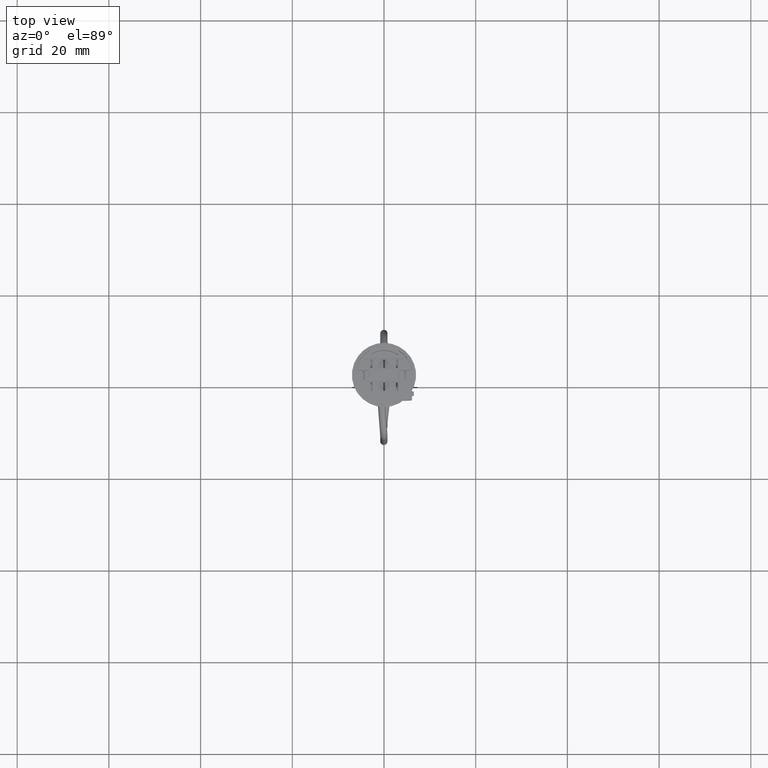
[diagram: clean part render]
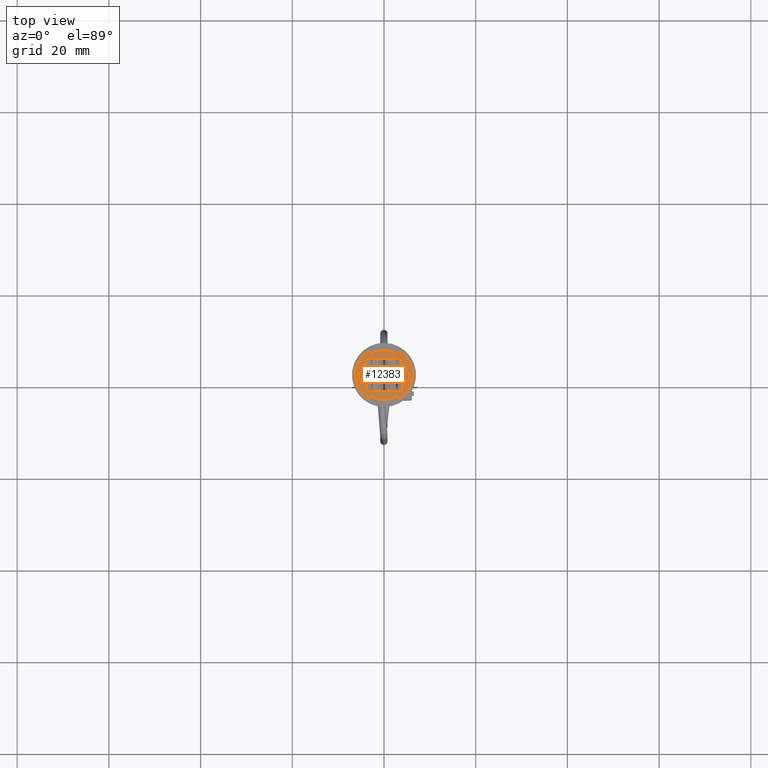
[diagram: same view with one face highlighted and labeled with its STEP entity id]
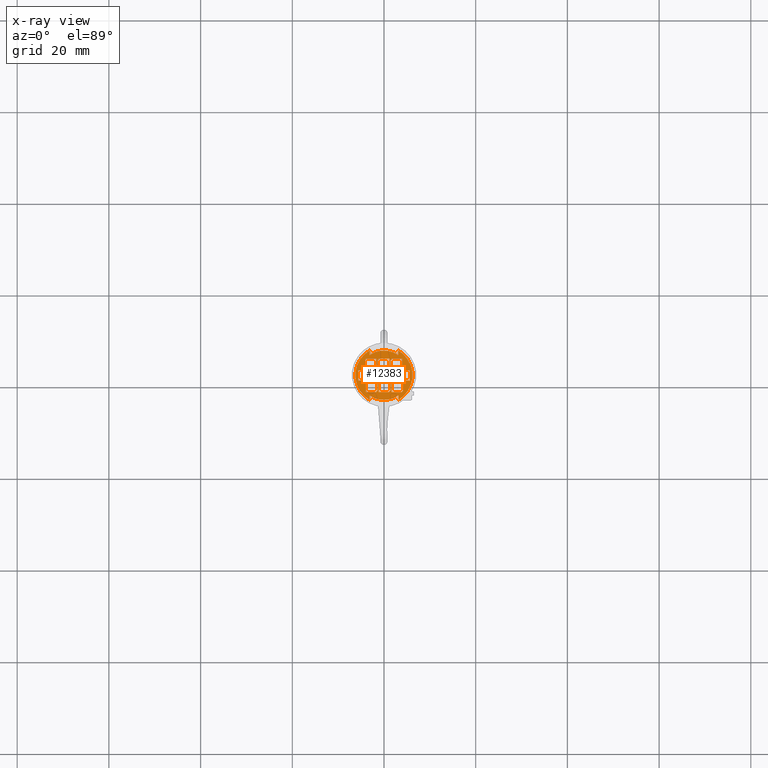
[diagram: x-ray of the same camera — body ghosted, the highlighted face saturated]
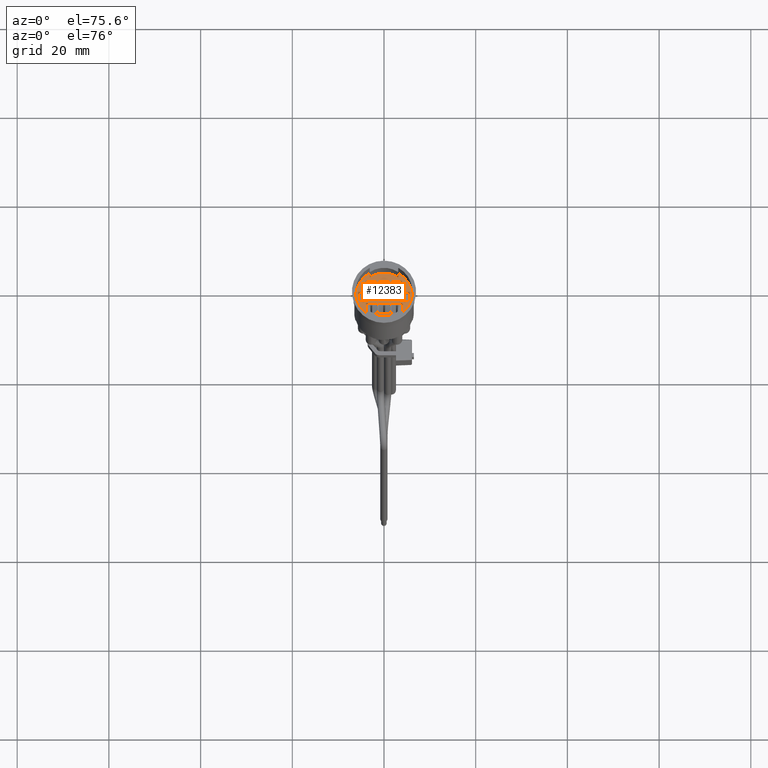
[diagram: same view with one face highlighted and labeled with its STEP entity id]
A machine part, top view. The second image highlights one B-rep face of the part: STEP entity #12383.
The next image is the same camera in x-ray: the body ghosted, the highlighted face saturated — about 0% of this face is hidden behind the body in this view.
A second angle (auxiliary view) of the same face is appended — the face is thin or edge-on in the first view.
In plain terms, the highlighted planar face has unit normal (-0, -0, 1).
Its self-contained STEP definition (entity closure, byte-faithful):
#400=PLANE('',#13470);
#833=FACE_BOUND('',#1990,.T.);
#834=FACE_BOUND('',#1991,.T.);
#835=FACE_BOUND('',#1992,.T.);
#836=FACE_BOUND('',#1993,.T.);
#837=FACE_BOUND('',#1994,.T.);
#838=FACE_BOUND('',#1995,.T.);
#839=FACE_BOUND('',#1996,.T.);
#840=FACE_BOUND('',#1997,.T.);
#1285=FACE_OUTER_BOUND('',#1989,.T.);
#1989=EDGE_LOOP('',(#10390,#10391,#10392,#10393,#10394,#10395,#10396,#10397));
#1990=EDGE_LOOP('',(#10398,#10399,#10400,#10401,#10402,#10403,#10404,#10405));
#1991=EDGE_LOOP('',(#10406,#10407,#10408,#10409,#10410,#10411,#10412,#10413));
#1992=EDGE_LOOP('',(#10414,#10415,#10416,#10417,#10418,#10419,#10420,#10421));
#1993=EDGE_LOOP('',(#10422,#10423,#10424,#10425,#10426,#10427,#10428,#10429));
#1994=EDGE_LOOP('',(#10430,#10431,#10432,#10433,#10434,#10435,#10436,#10437));
#1995=EDGE_LOOP('',(#10438,#10439,#10440,#10441,#10442,#10443,#10444,#10445));
#1996=EDGE_LOOP('',(#10446,#10447,#10448,#10449,#10450,#10451,#10452,#10453));
#1997=EDGE_LOOP('',(#10454,#10455,#10456,#10457,#10458,#10459,#10460,#10461));
#2685=CIRCLE('',#13471,5.4);
#2686=CIRCLE('',#13472,6.25);
#2687=CIRCLE('',#13473,5.4);
#2688=CIRCLE('',#13474,6.25);
#2822=LINE('',#17416,#3972);
#2825=LINE('',#17421,#3975);
#2827=LINE('',#17425,#3977);
#2829=LINE('',#17429,#3979);
#2888=LINE('',#17612,#4038);
#2891=LINE('',#17617,#4041);
#2893=LINE('',#17621,#4043);
#2895=LINE('',#17625,#4045);
#2954=LINE('',#17805,#4104);
#2957=LINE('',#17810,#4107);
#2959=LINE('',#17814,#4109);
#2961=LINE('',#17818,#4111);
#3281=LINE('',#21295,#4431);
#3295=LINE('',#21322,#4445);
#3322=LINE('',#21375,#4472);
#3345=LINE('',#21420,#4495);
#3479=LINE('',#22137,#4629);
#3480=LINE('',#22141,#4630);
#3481=LINE('',#22145,#4631);
#3482=LINE('',#22149,#4632);
#3483=LINE('',#22152,#4633);
#3484=LINE('',#22154,#4634);
#3485=LINE('',#22156,#4635);
#3486=LINE('',#22157,#4636);
#3487=LINE('',#22159,#4637);
#3488=LINE('',#22161,#4638);
#3489=LINE('',#22163,#4639);
#3490=LINE('',#22164,#4640);
#3491=LINE('',#22166,#4641);
#3492=LINE('',#22168,#4642);
#3493=LINE('',#22170,#4643);
#3494=LINE('',#22172,#4644);
#3495=LINE('',#22174,#4645);
#3496=LINE('',#22176,#4646);
#3497=LINE('',#22177,#4647);
#3498=LINE('',#22180,#4648);
#3499=LINE('',#22182,#4649);
#3500=LINE('',#22184,#4650);
#3501=LINE('',#22185,#4651);
#3502=LINE('',#22187,#4652);
#3503=LINE('',#22189,#4653);
#3504=LINE('',#22190,#4654);
#3505=LINE('',#22193,#4655);
#3506=LINE('',#22195,#4656);
#3507=LINE('',#22197,#4657);
#3508=LINE('',#22199,#4658);
#3509=LINE('',#22200,#4659);
#3510=LINE('',#22202,#4660);
#3511=LINE('',#22203,#4661);
#3512=LINE('',#22205,#4662);
#3513=LINE('',#22207,#4663);
#3514=LINE('',#22209,#4664);
#3515=LINE('',#22210,#4665);
#3516=LINE('',#22213,#4666);
#3517=LINE('',#22215,#4667);
#3518=LINE('',#22217,#4668);
#3519=LINE('',#22219,#4669);
#3520=LINE('',#22221,#4670);
#3521=LINE('',#22223,#4671);
#3522=LINE('',#22225,#4672);
#3523=LINE('',#22226,#4673);
#3524=LINE('',#22228,#4674);
#3525=LINE('',#22230,#4675);
#3526=LINE('',#22232,#4676);
#3527=LINE('',#22234,#4677);
#3528=LINE('',#22236,#4678);
#3529=LINE('',#22238,#4679);
#3530=LINE('',#22239,#4680);
#3972=VECTOR('',#13924,10.);
#3975=VECTOR('',#13929,10.);
#3977=VECTOR('',#13933,10.);
#3979=VECTOR('',#13937,10.);
#4038=VECTOR('',#14056,10.);
#4041=VECTOR('',#14061,10.);
#4043=VECTOR('',#14065,10.);
#4045=VECTOR('',#14069,10.);
#4104=VECTOR('',#14188,10.);
#4107=VECTOR('',#14193,10.);
#4109=VECTOR('',#14197,10.);
#4111=VECTOR('',#14201,10.);
#4431=VECTOR('',#15821,10.);
#4445=VECTOR('',#15845,10.);
#4472=VECTOR('',#15890,10.);
#4495=VECTOR('',#15927,10.);
#4629=VECTOR('',#16153,10.);
#4630=VECTOR('',#16156,10.);
#4631=VECTOR('',#16159,10.);
#4632=VECTOR('',#16162,10.);
#4633=VECTOR('',#16165,10.);
#4634=VECTOR('',#16166,10.);
#4635=VECTOR('',#16167,10.);
#4636=VECTOR('',#16168,10.);
#4637=VECTOR('',#16169,10.);
#4638=VECTOR('',#16170,10.);
#4639=VECTOR('',#16171,10.);
#4640=VECTOR('',#16172,10.);
#4641=VECTOR('',#16173,10.);
#4642=VECTOR('',#16174,10.);
#4643=VECTOR('',#16175,10.);
#4644=VECTOR('',#16176,10.);
#4645=VECTOR('',#16177,10.);
#4646=VECTOR('',#16178,10.);
#4647=VECTOR('',#16179,10.);
#4648=VECTOR('',#16180,10.);
#4649=VECTOR('',#16181,10.);
#4650=VECTOR('',#16182,10.);
#4651=VECTOR('',#16183,10.);
#4652=VECTOR('',#16184,10.);
#4653=VECTOR('',#16185,10.);
#4654=VECTOR('',#16186,10.);
#4655=VECTOR('',#16187,10.);
#4656=VECTOR('',#16188,10.);
#4657=VECTOR('',#16189,10.);
#4658=VECTOR('',#16190,10.);
#4659=VECTOR('',#16191,10.);
#4660=VECTOR('',#16192,10.);
#4661=VECTOR('',#16193,10.);
#4662=VECTOR('',#16194,10.);
#4663=VECTOR('',#16195,10.);
#4664=VECTOR('',#16196,10.);
#4665=VECTOR('',#16197,10.);
#4666=VECTOR('',#16198,10.);
#4667=VECTOR('',#16199,10.);
#4668=VECTOR('',#16200,10.);
#4669=VECTOR('',#16201,10.);
#4670=VECTOR('',#16202,10.);
#4671=VECTOR('',#16203,10.);
#4672=VECTOR('',#16204,10.);
#4673=VECTOR('',#16205,10.);
#4674=VECTOR('',#16206,10.);
#4675=VECTOR('',#16207,10.);
#4676=VECTOR('',#16208,10.);
#4677=VECTOR('',#16209,10.);
#4678=VECTOR('',#16210,10.);
#4679=VECTOR('',#16211,10.);
#4680=VECTOR('',#16212,10.);
#5124=VERTEX_POINT('',#17413);
#5125=VERTEX_POINT('',#17415);
#5126=VERTEX_POINT('',#17419);
#5127=VERTEX_POINT('',#17423);
#5128=VERTEX_POINT('',#17427);
#5185=VERTEX_POINT('',#17609);
#5186=VERTEX_POINT('',#17611);
#5187=VERTEX_POINT('',#17615);
#5188=VERTEX_POINT('',#17619);
#5189=VERTEX_POINT('',#17623);
#5246=VERTEX_POINT('',#17802);
#5247=VERTEX_POINT('',#17804);
#5248=VERTEX_POINT('',#17808);
#5249=VERTEX_POINT('',#17812);
#5250=VERTEX_POINT('',#17816);
#5763=VERTEX_POINT('',#21292);
#5764=VERTEX_POINT('',#21294);
#5771=VERTEX_POINT('',#21319);
#5772=VERTEX_POINT('',#21321);
#5788=VERTEX_POINT('',#21372);
#5789=VERTEX_POINT('',#21374);
#5803=VERTEX_POINT('',#21417);
#5804=VERTEX_POINT('',#21419);
#5919=VERTEX_POINT('',#22135);
#5920=VERTEX_POINT('',#22136);
#5921=VERTEX_POINT('',#22138);
#5922=VERTEX_POINT('',#22140);
#5923=VERTEX_POINT('',#22142);
#5924=VERTEX_POINT('',#22144);
#5925=VERTEX_POINT('',#22146);
#5926=VERTEX_POINT('',#22148);
#5927=VERTEX_POINT('',#22151);
#5928=VERTEX_POINT('',#22153);
#5929=VERTEX_POINT('',#22155);
#5930=VERTEX_POINT('',#22158);
#5931=VERTEX_POINT('',#22160);
#5932=VERTEX_POINT('',#22162);
#5933=VERTEX_POINT('',#22165);
#5934=VERTEX_POINT('',#22167);
#5935=VERTEX_POINT('',#22169);
#5936=VERTEX_POINT('',#22171);
#5937=VERTEX_POINT('',#22173);
#5938=VERTEX_POINT('',#22175);
#5939=VERTEX_POINT('',#22178);
#5940=VERTEX_POINT('',#22179);
#5941=VERTEX_POINT('',#22181);
#5942=VERTEX_POINT('',#22183);
#5943=VERTEX_POINT('',#22186);
#5944=VERTEX_POINT('',#22188);
#5945=VERTEX_POINT('',#22191);
#5946=VERTEX_POINT('',#22192);
#5947=VERTEX_POINT('',#22194);
#5948=VERTEX_POINT('',#22196);
#5949=VERTEX_POINT('',#22198);
#5950=VERTEX_POINT('',#22201);
#5951=VERTEX_POINT('',#22204);
#5952=VERTEX_POINT('',#22206);
#5953=VERTEX_POINT('',#22208);
#5954=VERTEX_POINT('',#22211);
#5955=VERTEX_POINT('',#22212);
#5956=VERTEX_POINT('',#22214);
#5957=VERTEX_POINT('',#22216);
#5958=VERTEX_POINT('',#22218);
#5959=VERTEX_POINT('',#22220);
#5960=VERTEX_POINT('',#22222);
#5961=VERTEX_POINT('',#22224);
#5962=VERTEX_POINT('',#22227);
#5963=VERTEX_POINT('',#22229);
#5964=VERTEX_POINT('',#22231);
#5965=VERTEX_POINT('',#22233);
#5966=VERTEX_POINT('',#22235);
#5967=VERTEX_POINT('',#22237);
#6345=EDGE_CURVE('',#5125,#5124,#2822,.T.);
#6348=EDGE_CURVE('',#5124,#5126,#2825,.T.);
#6350=EDGE_CURVE('',#5126,#5127,#2827,.T.);
#6352=EDGE_CURVE('',#5127,#5128,#2829,.T.);
#6427=EDGE_CURVE('',#5186,#5185,#2888,.T.);
#6430=EDGE_CURVE('',#5185,#5187,#2891,.T.);
#6432=EDGE_CURVE('',#5187,#5188,#2893,.T.);
#6434=EDGE_CURVE('',#5188,#5189,#2895,.T.);
#6509=EDGE_CURVE('',#5247,#5246,#2954,.T.);
#6512=EDGE_CURVE('',#5246,#5248,#2957,.T.);
#6514=EDGE_CURVE('',#5248,#5249,#2959,.T.);
#6516=EDGE_CURVE('',#5249,#5250,#2961,.T.);
#7290=EDGE_CURVE('',#5764,#5763,#3281,.T.);
#7304=EDGE_CURVE('',#5772,#5771,#3295,.T.);
#7331=EDGE_CURVE('',#5789,#5788,#3322,.T.);
#7354=EDGE_CURVE('',#5804,#5803,#3345,.T.);
#7537=EDGE_CURVE('',#5919,#5920,#3479,.T.);
#7538=EDGE_CURVE('',#5921,#5919,#2685,.T.);
#7539=EDGE_CURVE('',#5922,#5921,#3480,.T.);
#7540=EDGE_CURVE('',#5923,#5922,#2686,.T.);
#7541=EDGE_CURVE('',#5924,#5923,#3481,.T.);
#7542=EDGE_CURVE('',#5925,#5924,#2687,.T.);
#7543=EDGE_CURVE('',#5926,#5925,#3482,.T.);
#7544=EDGE_CURVE('',#5920,#5926,#2688,.T.);
#7545=EDGE_CURVE('',#5927,#5186,#3483,.T.);
#7546=EDGE_CURVE('',#5189,#5928,#3484,.T.);
#7547=EDGE_CURVE('',#5928,#5929,#3485,.T.);
#7548=EDGE_CURVE('',#5929,#5927,#3486,.T.);
#7549=EDGE_CURVE('',#5128,#5930,#3487,.T.);
#7550=EDGE_CURVE('',#5930,#5931,#3488,.T.);
#7551=EDGE_CURVE('',#5931,#5932,#3489,.T.);
#7552=EDGE_CURVE('',#5932,#5125,#3490,.T.);
#7553=EDGE_CURVE('',#5933,#5772,#3491,.T.);
#7554=EDGE_CURVE('',#5771,#5934,#3492,.T.);
#7555=EDGE_CURVE('',#5934,#5935,#3493,.T.);
#7556=EDGE_CURVE('',#5935,#5936,#3494,.T.);
#7557=EDGE_CURVE('',#5936,#5937,#3495,.T.);
#7558=EDGE_CURVE('',#5937,#5938,#3496,.T.);
#7559=EDGE_CURVE('',#5938,#5933,#3497,.T.);
#7560=EDGE_CURVE('',#5939,#5940,#3498,.T.);
#7561=EDGE_CURVE('',#5940,#5941,#3499,.T.);
#7562=EDGE_CURVE('',#5941,#5942,#3500,.T.);
#7563=EDGE_CURVE('',#5942,#5789,#3501,.T.);
#7564=EDGE_CURVE('',#5788,#5943,#3502,.T.);
#7565=EDGE_CURVE('',#5943,#5944,#3503,.T.);
#7566=EDGE_CURVE('',#5944,#5939,#3504,.T.);
#7567=EDGE_CURVE('',#5945,#5946,#3505,.T.);
#7568=EDGE_CURVE('',#5946,#5947,#3506,.T.);
#7569=EDGE_CURVE('',#5947,#5948,#3507,.T.);
#7570=EDGE_CURVE('',#5948,#5949,#3508,.T.);
#7571=EDGE_CURVE('',#5949,#5804,#3509,.T.);
#7572=EDGE_CURVE('',#5803,#5950,#3510,.T.);
#7573=EDGE_CURVE('',#5950,#5945,#3511,.T.);
#7574=EDGE_CURVE('',#5250,#5951,#3512,.T.);
#7575=EDGE_CURVE('',#5951,#5952,#3513,.T.);
#7576=EDGE_CURVE('',#5952,#5953,#3514,.T.);
#7577=EDGE_CURVE('',#5953,#5247,#3515,.T.);
#7578=EDGE_CURVE('',#5954,#5955,#3516,.T.);
#7579=EDGE_CURVE('',#5955,#5956,#3517,.T.);
#7580=EDGE_CURVE('',#5956,#5957,#3518,.T.);
#7581=EDGE_CURVE('',#5957,#5958,#3519,.T.);
#7582=EDGE_CURVE('',#5958,#5959,#3520,.T.);
#7583=EDGE_CURVE('',#5959,#5960,#3521,.T.);
#7584=EDGE_CURVE('',#5960,#5961,#3522,.T.);
#7585=EDGE_CURVE('',#5961,#5954,#3523,.T.);
#7586=EDGE_CURVE('',#5763,#5962,#3524,.T.);
#7587=EDGE_CURVE('',#5962,#5963,#3525,.T.);
#7588=EDGE_CURVE('',#5963,#5964,#3526,.T.);
#7589=EDGE_CURVE('',#5964,#5965,#3527,.T.);
#7590=EDGE_CURVE('',#5965,#5966,#3528,.T.);
#7591=EDGE_CURVE('',#5966,#5967,#3529,.T.);
#7592=EDGE_CURVE('',#5967,#5764,#3530,.T.);
#10390=ORIENTED_EDGE('',*,*,#7537,.F.);
#10391=ORIENTED_EDGE('',*,*,#7538,.F.);
#10392=ORIENTED_EDGE('',*,*,#7539,.F.);
#10393=ORIENTED_EDGE('',*,*,#7540,.F.);
#10394=ORIENTED_EDGE('',*,*,#7541,.F.);
#10395=ORIENTED_EDGE('',*,*,#7542,.F.);
#10396=ORIENTED_EDGE('',*,*,#7543,.F.);
#10397=ORIENTED_EDGE('',*,*,#7544,.F.);
#10398=ORIENTED_EDGE('',*,*,#7545,.T.);
#10399=ORIENTED_EDGE('',*,*,#6427,.T.);
#10400=ORIENTED_EDGE('',*,*,#6430,.T.);
#10401=ORIENTED_EDGE('',*,*,#6432,.T.);
#10402=ORIENTED_EDGE('',*,*,#6434,.T.);
#10403=ORIENTED_EDGE('',*,*,#7546,.T.);
#10404=ORIENTED_EDGE('',*,*,#7547,.T.);
#10405=ORIENTED_EDGE('',*,*,#7548,.T.);
#10406=ORIENTED_EDGE('',*,*,#6345,.T.);
#10407=ORIENTED_EDGE('',*,*,#6348,.T.);
#10408=ORIENTED_EDGE('',*,*,#6350,.T.);
#10409=ORIENTED_EDGE('',*,*,#6352,.T.);
#10410=ORIENTED_EDGE('',*,*,#7549,.T.);
#10411=ORIENTED_EDGE('',*,*,#7550,.T.);
#10412=ORIENTED_EDGE('',*,*,#7551,.T.);
#10413=ORIENTED_EDGE('',*,*,#7552,.T.);
#10414=ORIENTED_EDGE('',*,*,#7553,.T.);
#10415=ORIENTED_EDGE('',*,*,#7304,.T.);
#10416=ORIENTED_EDGE('',*,*,#7554,.T.);
#10417=ORIENTED_EDGE('',*,*,#7555,.T.);
#10418=ORIENTED_EDGE('',*,*,#7556,.T.);
#10419=ORIENTED_EDGE('',*,*,#7557,.T.);
#10420=ORIENTED_EDGE('',*,*,#7558,.T.);
#10421=ORIENTED_EDGE('',*,*,#7559,.T.);
#10422=ORIENTED_EDGE('',*,*,#7560,.T.);
#10423=ORIENTED_EDGE('',*,*,#7561,.T.);
#10424=ORIENTED_EDGE('',*,*,#7562,.T.);
#10425=ORIENTED_EDGE('',*,*,#7563,.T.);
#10426=ORIENTED_EDGE('',*,*,#7331,.T.);
#10427=ORIENTED_EDGE('',*,*,#7564,.T.);
#10428=ORIENTED_EDGE('',*,*,#7565,.T.);
#10429=ORIENTED_EDGE('',*,*,#7566,.T.);
#10430=ORIENTED_EDGE('',*,*,#7567,.T.);
#10431=ORIENTED_EDGE('',*,*,#7568,.T.);
#10432=ORIENTED_EDGE('',*,*,#7569,.T.);
#10433=ORIENTED_EDGE('',*,*,#7570,.T.);
#10434=ORIENTED_EDGE('',*,*,#7571,.T.);
#10435=ORIENTED_EDGE('',*,*,#7354,.T.);
#10436=ORIENTED_EDGE('',*,*,#7572,.T.);
#10437=ORIENTED_EDGE('',*,*,#7573,.T.);
#10438=ORIENTED_EDGE('',*,*,#7574,.T.);
#10439=ORIENTED_EDGE('',*,*,#7575,.T.);
#10440=ORIENTED_EDGE('',*,*,#7576,.T.);
#10441=ORIENTED_EDGE('',*,*,#7577,.T.);
#10442=ORIENTED_EDGE('',*,*,#6509,.T.);
#10443=ORIENTED_EDGE('',*,*,#6512,.T.);
#10444=ORIENTED_EDGE('',*,*,#6514,.T.);
#10445=ORIENTED_EDGE('',*,*,#6516,.T.);
#10446=ORIENTED_EDGE('',*,*,#7578,.T.);
#10447=ORIENTED_EDGE('',*,*,#7579,.T.);
#10448=ORIENTED_EDGE('',*,*,#7580,.T.);
#10449=ORIENTED_EDGE('',*,*,#7581,.T.);
#10450=ORIENTED_EDGE('',*,*,#7582,.T.);
#10451=ORIENTED_EDGE('',*,*,#7583,.T.);
#10452=ORIENTED_EDGE('',*,*,#7584,.T.);
#10453=ORIENTED_EDGE('',*,*,#7585,.T.);
#10454=ORIENTED_EDGE('',*,*,#7290,.T.);
#10455=ORIENTED_EDGE('',*,*,#7586,.T.);
#10456=ORIENTED_EDGE('',*,*,#7587,.T.);
#10457=ORIENTED_EDGE('',*,*,#7588,.T.);
#10458=ORIENTED_EDGE('',*,*,#7589,.T.);
#10459=ORIENTED_EDGE('',*,*,#7590,.T.);
#10460=ORIENTED_EDGE('',*,*,#7591,.T.);
#10461=ORIENTED_EDGE('',*,*,#7592,.T.);
#12383=ADVANCED_FACE('',(#1285,#833,#834,#835,#836,#837,#838,#839,#840),
#400,.T.);
#13470=AXIS2_PLACEMENT_3D('',#22134,#16151,#16152);
#13471=AXIS2_PLACEMENT_3D('',#22139,#16154,#16155);
#13472=AXIS2_PLACEMENT_3D('',#22143,#16157,#16158);
#13473=AXIS2_PLACEMENT_3D('',#22147,#16160,#16161);
#13474=AXIS2_PLACEMENT_3D('',#22150,#16163,#16164);
#13924=DIRECTION('',(7.83572744318549E-15,-1.,1.68711463128373E-30));
#13929=DIRECTION('',(-1.,-7.83572744318549E-15,-1.33148491864264E-14));
#13933=DIRECTION('',(-7.83572744318549E-15,1.,-1.68711463128373E-30));
#13937=DIRECTION('',(-1.,3.2665028030664E-15,-1.33148491864264E-14));
#14056=DIRECTION('',(7.83572744318549E-15,-1.,1.68711463128373E-30));
#14061=DIRECTION('',(-1.,-7.83572744318549E-15,-1.33148491864264E-14));
#14065=DIRECTION('',(-7.83572744318549E-15,1.,-1.68711463128373E-30));
#14069=DIRECTION('',(-1.,3.26650280306639E-15,-1.33148491864264E-14));
#14188=DIRECTION('',(4.76754237880724E-14,1.,7.37435492177822E-28));
#14193=DIRECTION('',(1.,9.7665500947075E-15,1.33148491864264E-14));
#14197=DIRECTION('',(2.28461232005965E-15,-1.,-7.22251460496275E-29));
#14201=DIRECTION('',(1.,2.28461232005958E-15,1.33148491864264E-14));
#15821=DIRECTION('',(7.83572744318549E-15,-1.,1.68711463128373E-30));
#15845=DIRECTION('',(7.83572744318549E-15,-1.,1.68711463128373E-30));
#15890=DIRECTION('',(4.76754237880724E-14,1.,7.37435492177822E-28));
#15927=DIRECTION('',(4.76754237880724E-14,1.,7.37435492177822E-28));
#16151=DIRECTION('center_axis',(-1.33148491864264E-14,-1.02644414540674E-28,
1.));
#16152=DIRECTION('ref_axis',(-7.83572744318549E-15,1.,-1.68711463128373E-30));
#16153=DIRECTION('',(-7.83572744318549E-15,1.,-1.68711463128373E-30));
#16154=DIRECTION('center_axis',(1.33148491864264E-14,1.02644414540674E-28,
-1.));
#16155=DIRECTION('ref_axis',(-0.574074074074068,-0.818803369238306,-7.64370971813366E-15));
#16156=DIRECTION('',(7.83572744318549E-15,-1.,1.68711463128373E-30));
#16157=DIRECTION('center_axis',(1.33148491864264E-14,1.02644414540674E-28,
-1.));
#16158=DIRECTION('ref_axis',(0.501047504744671,-0.865419781371526,6.67137196091046E-15));
#16159=DIRECTION('',(7.83572744318549E-15,-1.,1.68711463128373E-30));
#16160=DIRECTION('center_axis',(1.33148491864264E-14,1.02644414540674E-28,
-1.));
#16161=DIRECTION('ref_axis',(0.574074074074068,0.818803369238306,7.64370971813367E-15));
#16162=DIRECTION('',(-1.01049741746063E-14,1.,-3.19017926269429E-29));
#16163=DIRECTION('center_axis',(1.33148491864264E-14,1.02644414540674E-28,
-1.));
#16164=DIRECTION('ref_axis',(-0.501047504744671,0.865419781371525,-6.67137196091047E-15));
#16165=DIRECTION('',(1.,7.83572744318549E-15,1.33148491864264E-14));
#16166=DIRECTION('',(-7.98180942010985E-15,1.,-3.63217412288664E-30));
#16167=DIRECTION('',(1.,7.83572744318549E-15,1.33148491864264E-14));
#16168=DIRECTION('',(-7.83572744318549E-15,1.,-1.68711463128373E-30));
#16169=DIRECTION('',(-7.83572744318549E-15,1.,-1.68711463128373E-30));
#16170=DIRECTION('',(1.,7.83572744318549E-15,1.33148491864264E-14));
#16171=DIRECTION('',(-7.83572744318549E-15,1.,-1.68711463128373E-30));
#16172=DIRECTION('',(1.,7.83572744318549E-15,1.33148491864264E-14));
#16173=DIRECTION('',(1.,7.83572744318549E-15,1.33148491864264E-14));
#16174=DIRECTION('',(-1.,-7.83572744318549E-15,-1.33148491864264E-14));
#16175=DIRECTION('',(-7.83572744318549E-15,1.,-1.68711463128373E-30));
#16176=DIRECTION('',(-1.,3.2665028030664E-15,-1.33148491864264E-14));
#16177=DIRECTION('',(-8.12789139703422E-15,1.,-5.57723361448955E-30));
#16178=DIRECTION('',(1.,7.83572744318549E-15,1.33148491864264E-14));
#16179=DIRECTION('',(-7.83572744318549E-15,1.,-1.68711463128373E-30));
#16180=DIRECTION('',(1.0465203027824E-14,-1.,3.66981854801361E-29));
#16181=DIRECTION('',(-1.,-1.06112850047465E-14,-1.33148491864264E-14));
#16182=DIRECTION('',(7.83572744318549E-15,-1.,1.68711463128373E-30));
#16183=DIRECTION('',(-1.,-9.28384443182701E-15,-1.33148491864264E-14));
#16184=DIRECTION('',(1.,9.7665500947075E-15,1.33148491864264E-14));
#16185=DIRECTION('',(2.28461232005967E-15,-1.,-7.22251460496273E-29));
#16186=DIRECTION('',(1.,5.06016988162253E-15,1.33148491864264E-14));
#16187=DIRECTION('',(1.,4.36628049123179E-15,1.33148491864264E-14));
#16188=DIRECTION('',(1.01730390739753E-14,-1.,3.28080664969303E-29));
#16189=DIRECTION('',(-1.,-1.06112850047465E-14,-1.33148491864264E-14));
#16190=DIRECTION('',(7.83572744318549E-15,-1.,1.68711463128373E-30));
#16191=DIRECTION('',(-1.,-9.28384443182701E-15,-1.33148491864264E-14));
#16192=DIRECTION('',(1.,9.7665500947075E-15,1.33148491864264E-14));
#16193=DIRECTION('',(2.28461232005966E-15,-1.,-7.22251460496274E-29));
#16194=DIRECTION('',(1.07573669816727E-14,-1.,4.05883044633419E-29));
#16195=DIRECTION('',(-1.,-7.83572744318549E-15,-1.33148491864264E-14));
#16196=DIRECTION('',(7.83572744318549E-15,-1.,1.68711463128373E-30));
#16197=DIRECTION('',(-1.,-9.28384443182701E-15,-1.33148491864264E-14));
#16198=DIRECTION('',(1.,6.44794866240401E-15,1.33148491864264E-14));
#16199=DIRECTION('',(1.07573669816727E-14,-1.,4.05883044633419E-29));
#16200=DIRECTION('',(-1.,-7.83572744318549E-15,-1.33148491864264E-14));
#16201=DIRECTION('',(7.83572744318549E-15,-1.,1.68711463128373E-30));
#16202=DIRECTION('',(-1.,-9.28384443182701E-15,-1.33148491864264E-14));
#16203=DIRECTION('',(4.76754237880724E-14,1.,7.37435492177822E-28));
#16204=DIRECTION('',(1.,9.7665500947075E-15,1.33148491864264E-14));
#16205=DIRECTION('',(4.36628049123186E-15,-1.,-4.45080482942856E-29));
#16206=DIRECTION('',(-1.,-7.83572744318549E-15,-1.33148491864264E-14));
#16207=DIRECTION('',(-7.83572744318549E-15,1.,-1.68711463128373E-30));
#16208=DIRECTION('',(-1.,3.96039219345711E-15,-1.33148491864264E-14));
#16209=DIRECTION('',(-8.12789139703422E-15,1.,-5.57723361448955E-30));
#16210=DIRECTION('',(1.,7.83572744318549E-15,1.33148491864264E-14));
#16211=DIRECTION('',(-7.83572744318549E-15,1.,-1.68711463128373E-30));
#16212=DIRECTION('',(1.,7.83572744318549E-15,1.33148491864264E-14));
#17413=CARTESIAN_POINT('',(-1.65000000000018,1.34999999999999,20.3999999999999));
#17415=CARTESIAN_POINT('',(-1.65000000000019,3.64999999999999,20.3999999999999));
#17416=CARTESIAN_POINT('',(-1.65000000000018,1.82942033688834,20.3999999999999));
#17419=CARTESIAN_POINT('',(-3.95000000000018,1.34999999999997,20.3999999999999));
#17421=CARTESIAN_POINT('',(-0.825000000000176,1.34999999999999,20.3999999999999));
#17423=CARTESIAN_POINT('',(-3.95000000000018,1.54999999999997,20.3999999999999));
#17425=CARTESIAN_POINT('',(-3.95000000000017,0.679420336888318,20.3999999999999));
#17427=CARTESIAN_POINT('',(-4.15000000000017,1.54999999999997,20.3999999999999));
#17429=CARTESIAN_POINT('',(-1.97500000000017,1.54999999999996,20.3999999999999));
#17609=CARTESIAN_POINT('',(1.14999999999982,1.35000000000001,20.3999999999999));
#17611=CARTESIAN_POINT('',(1.1499999999998,3.65000000000001,20.3999999999999));
#17612=CARTESIAN_POINT('',(1.14999999999982,1.82942033688836,20.3999999999999));
#17615=CARTESIAN_POINT('',(-1.15000000000018,1.34999999999999,20.3999999999999));
#17617=CARTESIAN_POINT('',(0.574999999999823,1.35,20.3999999999999));
#17619=CARTESIAN_POINT('',(-1.15000000000018,1.54999999999999,20.3999999999999));
#17621=CARTESIAN_POINT('',(-1.15000000000017,0.67942033688834,20.3999999999999));
#17623=CARTESIAN_POINT('',(-1.35000000000017,1.54999999999999,20.3999999999999));
#17625=CARTESIAN_POINT('',(-0.57500000000017,1.54999999999999,20.3999999999999));
#17802=CARTESIAN_POINT('',(-3.95,-1.35000000000004,20.3999999999999));
#17804=CARTESIAN_POINT('',(-3.95000000000011,-3.65000000000004,20.3999999999999));
#17805=CARTESIAN_POINT('',(-3.95000000000002,-1.82057966311158,20.3999999999999));
#17808=CARTESIAN_POINT('',(-1.65,-1.35000000000002,20.3999999999999));
#17810=CARTESIAN_POINT('',(-1.97500000000008,-1.35000000000002,20.3999999999999));
#17812=CARTESIAN_POINT('',(-1.65,-1.55000000000001,20.3999999999999));
#17814=CARTESIAN_POINT('',(-1.65,-0.670579663111661,20.3999999999999));
#17816=CARTESIAN_POINT('',(-1.45,-1.55000000000001,20.3999999999999));
#17818=CARTESIAN_POINT('',(-0.825000000000081,-1.55000000000001,20.3999999999999));
#21292=CARTESIAN_POINT('',(5.64999999999984,-1.14999999999996,20.4));
#21294=CARTESIAN_POINT('',(5.64999999999982,1.15000000000004,20.4));
#21295=CARTESIAN_POINT('',(5.64999999999983,0.579420336888393,20.4));
#21319=CARTESIAN_POINT('',(3.94999999999982,1.35000000000003,20.4));
#21321=CARTESIAN_POINT('',(3.9499999999998,3.65000000000003,20.4));
#21322=CARTESIAN_POINT('',(3.94999999999982,1.82942033688838,20.4));
#21372=CARTESIAN_POINT('',(1.65,-1.34999999999999,20.3999999999999));
#21374=CARTESIAN_POINT('',(1.64999999999989,-3.64999999999999,20.3999999999999));
#21375=CARTESIAN_POINT('',(1.64999999999998,-1.82057966311169,20.3999999999999));
#21417=CARTESIAN_POINT('',(-5.65000000000002,1.14999999999995,20.3999999999998));
#21419=CARTESIAN_POINT('',(-5.65000000000013,-1.15000000000005,20.3999999999998));
#21420=CARTESIAN_POINT('',(-5.6500000000001,-0.570579663111542,20.3999999999998));
#22134=CARTESIAN_POINT('Origin',(-1.65949776428146E-13,0.00884067377669717,
20.3999999999999));
#22135=CARTESIAN_POINT('',(3.0999999999998,4.42153819388685,20.4));
#22136=CARTESIAN_POINT('',(3.09999999999979,5.41771430734878,20.4));
#22137=CARTESIAN_POINT('',(3.09999999999982,2.21518943383179,20.4));
#22138=CARTESIAN_POINT('',(-3.1000000000002,4.4215381938868,20.3999999999999));
#22139=CARTESIAN_POINT('Origin',(-1.6643561483033E-13,-1.28305518175842E-27,
20.3999999999999));
#22140=CARTESIAN_POINT('',(-3.10000000000021,5.41771430734873,20.3999999999999));
#22141=CARTESIAN_POINT('',(-3.10000000000019,2.7132774905627,20.3999999999999));
#22142=CARTESIAN_POINT('',(-3.10000000000013,-5.40003295979539,20.3999999999999));
#22143=CARTESIAN_POINT('Origin',(0.0315469046539821,0.00884067377669693,
20.3999999999999));
#22144=CARTESIAN_POINT('',(-3.10000000000013,-4.42153819388685,20.3999999999999));
#22145=CARTESIAN_POINT('',(-3.10000000000015,-2.20634876005509,20.3999999999999));
#22146=CARTESIAN_POINT('',(3.09999999999987,-4.4215381938868,20.4));
#22147=CARTESIAN_POINT('Origin',(-1.6643561483033E-13,-1.28305518175842E-27,
20.3999999999999));
#22148=CARTESIAN_POINT('',(3.09999999999988,-5.40003295979534,20.4));
#22149=CARTESIAN_POINT('',(3.09999999999985,-2.6955961430093,20.4));
#22150=CARTESIAN_POINT('Origin',(-0.0315469046543151,0.00884067377669644,
20.3999999999999));
#22151=CARTESIAN_POINT('',(-1.15000000000019,3.64999999999999,20.3999999999999));
#22152=CARTESIAN_POINT('',(-0.575000000000195,3.65,20.3999999999999));
#22153=CARTESIAN_POINT('',(-1.35000000000019,3.44999999999999,20.3999999999999));
#22154=CARTESIAN_POINT('',(-1.35000000000017,0.779420336888339,20.3999999999999));
#22155=CARTESIAN_POINT('',(-1.15000000000019,3.44999999999999,20.3999999999999));
#22156=CARTESIAN_POINT('',(-0.67500000000019,3.45,20.3999999999999));
#22157=CARTESIAN_POINT('',(-1.15000000000018,1.72942033688834,20.3999999999999));
#22158=CARTESIAN_POINT('',(-4.15000000000019,3.44999999999997,20.3999999999999));
#22159=CARTESIAN_POINT('',(-4.15000000000017,0.779420336888317,20.3999999999999));
#22160=CARTESIAN_POINT('',(-3.95000000000019,3.44999999999997,20.3999999999999));
#22161=CARTESIAN_POINT('',(-2.07500000000019,3.44999999999999,20.3999999999999));
#22162=CARTESIAN_POINT('',(-3.95000000000019,3.64999999999997,20.3999999999999));
#22163=CARTESIAN_POINT('',(-3.95000000000018,1.72942033688832,20.3999999999999));
#22164=CARTESIAN_POINT('',(-1.97500000000019,3.64999999999998,20.3999999999999));
#22165=CARTESIAN_POINT('',(1.64999999999981,3.65000000000001,20.3999999999999));
#22166=CARTESIAN_POINT('',(0.824999999999805,3.65000000000001,20.3999999999999));
#22167=CARTESIAN_POINT('',(1.64999999999982,1.35000000000001,20.3999999999999));
#22168=CARTESIAN_POINT('',(1.97499999999982,1.35000000000002,20.3999999999999));
#22169=CARTESIAN_POINT('',(1.64999999999982,1.55000000000001,20.3999999999999));
#22170=CARTESIAN_POINT('',(1.64999999999983,0.679420336888362,20.3999999999999));
#22171=CARTESIAN_POINT('',(1.44999999999983,1.55000000000001,20.3999999999999));
#22172=CARTESIAN_POINT('',(0.82499999999983,1.55000000000002,20.3999999999999));
#22173=CARTESIAN_POINT('',(1.44999999999981,3.45000000000001,20.3999999999999));
#22174=CARTESIAN_POINT('',(1.44999999999983,0.779420336888361,20.3999999999999));
#22175=CARTESIAN_POINT('',(1.64999999999981,3.45000000000002,20.3999999999999));
#22176=CARTESIAN_POINT('',(0.72499999999981,3.45000000000001,20.3999999999999));
#22177=CARTESIAN_POINT('',(1.64999999999982,1.72942033688836,20.3999999999999));
#22178=CARTESIAN_POINT('',(4.15,-1.54999999999997,20.4));
#22179=CARTESIAN_POINT('',(4.15000000000002,-3.44999999999997,20.4));
#22180=CARTESIAN_POINT('',(4.14999999999999,-0.770579663111615,20.4));
#22181=CARTESIAN_POINT('',(3.94999999999988,-3.44999999999997,20.4));
#22182=CARTESIAN_POINT('',(2.07499999999994,-3.44999999999999,20.3999999999999));
#22183=CARTESIAN_POINT('',(3.94999999999988,-3.64999999999997,20.4));
#22184=CARTESIAN_POINT('',(3.94999999999986,-1.72057966311162,20.4));
#22185=CARTESIAN_POINT('',(1.97499999999987,-3.64999999999999,20.3999999999999));
#22186=CARTESIAN_POINT('',(3.95,-1.34999999999997,20.4));
#22187=CARTESIAN_POINT('',(0.824999999999923,-1.35,20.3999999999999));
#22188=CARTESIAN_POINT('',(3.95,-1.54999999999997,20.4));
#22189=CARTESIAN_POINT('',(3.95,-0.670579663111633,20.4));
#22190=CARTESIAN_POINT('',(1.97499999999992,-1.54999999999998,20.3999999999999));
#22191=CARTESIAN_POINT('',(-3.35000000000002,0.949999999999972,20.3999999999999));
#22192=CARTESIAN_POINT('',(-3.15000000000002,0.949999999999973,20.3999999999999));
#22193=CARTESIAN_POINT('',(-1.67500000000009,0.949999999999979,20.3999999999999));
#22194=CARTESIAN_POINT('',(-3.15,-0.950000000000027,20.3999999999999));
#22195=CARTESIAN_POINT('',(-3.15000000000002,0.479420336888319,20.3999999999999));
#22196=CARTESIAN_POINT('',(-3.35000000000014,-0.950000000000029,20.3999999999999));
#22197=CARTESIAN_POINT('',(-1.57500000000008,-0.95000000000001,20.3999999999999));
#22198=CARTESIAN_POINT('',(-3.35000000000014,-1.15000000000003,20.3999999999999));
#22199=CARTESIAN_POINT('',(-3.35000000000015,-0.470579663111679,20.3999999999999));
#22200=CARTESIAN_POINT('',(-1.67500000000015,-1.15000000000001,20.3999999999999));
#22201=CARTESIAN_POINT('',(-3.35000000000002,1.14999999999997,20.3999999999999));
#22202=CARTESIAN_POINT('',(-2.8250000000001,1.14999999999998,20.3999999999999));
#22203=CARTESIAN_POINT('',(-3.35000000000002,0.57942033688833,20.3999999999999));
#22204=CARTESIAN_POINT('',(-1.44999999999998,-3.45000000000001,20.3999999999999));
#22205=CARTESIAN_POINT('',(-1.45000000000001,-0.770579663111666,20.3999999999999));
#22206=CARTESIAN_POINT('',(-1.65000000000012,-3.45000000000002,20.3999999999999));
#22207=CARTESIAN_POINT('',(-0.725000000000061,-3.45000000000001,20.3999999999999));
#22208=CARTESIAN_POINT('',(-1.65000000000012,-3.65000000000002,20.3999999999999));
#22209=CARTESIAN_POINT('',(-1.65000000000014,-1.72057966311167,20.3999999999999));
#22210=CARTESIAN_POINT('',(-0.825000000000126,-3.65000000000001,20.3999999999999));
#22211=CARTESIAN_POINT('',(1.15,-1.54999999999999,20.3999999999999));
#22212=CARTESIAN_POINT('',(1.35,-1.54999999999999,20.3999999999999));
#22213=CARTESIAN_POINT('',(0.574999999999922,-1.55,20.3999999999999));
#22214=CARTESIAN_POINT('',(1.35000000000002,-3.44999999999999,20.3999999999999));
#22215=CARTESIAN_POINT('',(1.34999999999999,-0.77057966311164,20.3999999999999));
#22216=CARTESIAN_POINT('',(1.14999999999988,-3.44999999999999,20.3999999999999));
#22217=CARTESIAN_POINT('',(0.674999999999938,-3.45,20.3999999999999));
#22218=CARTESIAN_POINT('',(1.14999999999988,-3.64999999999999,20.3999999999999));
#22219=CARTESIAN_POINT('',(1.14999999999986,-1.72057966311164,20.3999999999999));
#22220=CARTESIAN_POINT('',(-1.15000000000011,-3.65000000000001,20.3999999999999));
#22221=CARTESIAN_POINT('',(0.574999999999873,-3.65,20.3999999999999));
#22222=CARTESIAN_POINT('',(-1.15,-1.35000000000002,20.3999999999999));
#22223=CARTESIAN_POINT('',(-1.15000000000002,-1.82057966311163,20.3999999999999));
#22224=CARTESIAN_POINT('',(1.15,-1.34999999999999,20.3999999999999));
#22225=CARTESIAN_POINT('',(-0.575000000000077,-1.35000000000001,20.3999999999999));
#22226=CARTESIAN_POINT('',(1.15,-0.670579663111646,20.3999999999999));
#22227=CARTESIAN_POINT('',(3.34999999999984,-1.14999999999997,20.4));
#22228=CARTESIAN_POINT('',(2.82499999999984,-1.14999999999998,20.3999999999999));
#22229=CARTESIAN_POINT('',(3.34999999999984,-0.949999999999974,20.4));
#22230=CARTESIAN_POINT('',(3.34999999999984,-0.570579663111625,20.4));
#22231=CARTESIAN_POINT('',(3.14999999999985,-0.949999999999973,20.4));
#22232=CARTESIAN_POINT('',(1.67499999999984,-0.949999999999967,20.3999999999999));
#22233=CARTESIAN_POINT('',(3.14999999999983,0.950000000000027,20.4));
#22234=CARTESIAN_POINT('',(3.14999999999984,-0.470579663111625,20.4));
#22235=CARTESIAN_POINT('',(3.34999999999983,0.950000000000029,20.4));
#22236=CARTESIAN_POINT('',(1.57499999999983,0.950000000000015,20.3999999999999));
#22237=CARTESIAN_POINT('',(3.34999999999982,1.15000000000003,20.4));
#22238=CARTESIAN_POINT('',(3.34999999999983,0.479420336888376,20.4));
#22239=CARTESIAN_POINT('',(1.67499999999982,1.15000000000001,20.3999999999999));